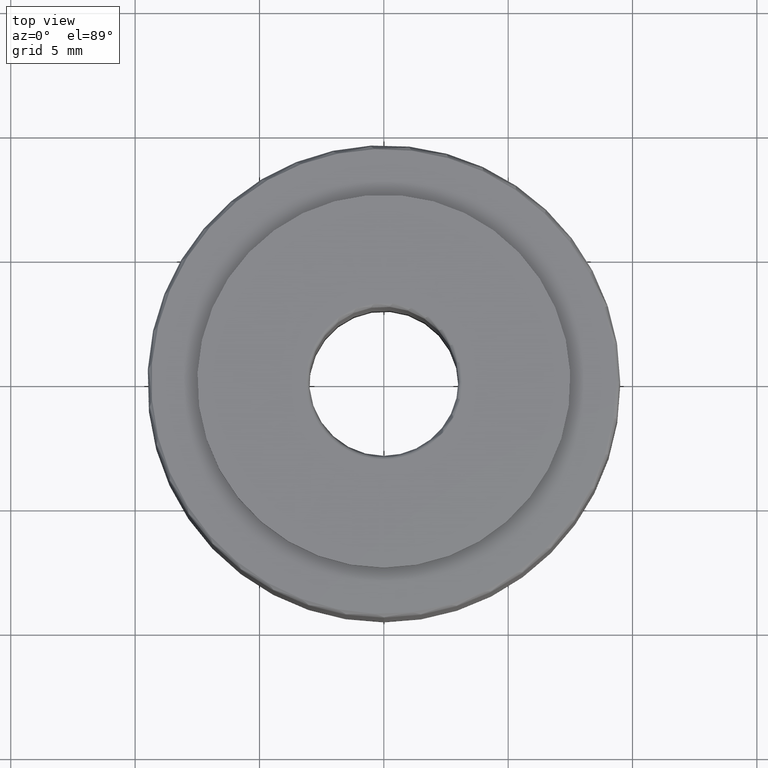
[diagram: clean part render]
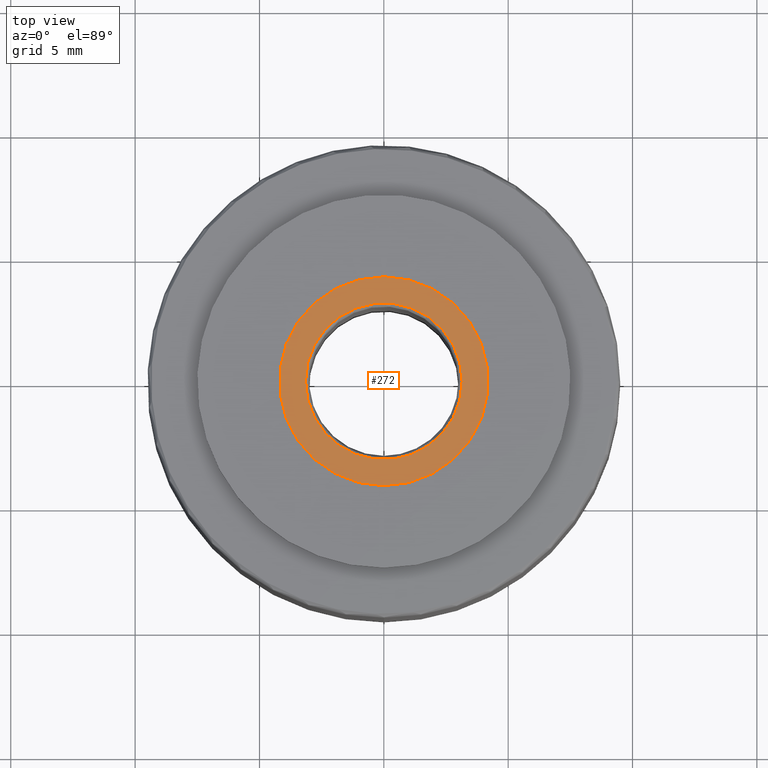
[diagram: same view with one face highlighted and labeled with its STEP entity id]
A machine part, top view. The second image highlights one B-rep face of the part: STEP entity #272.
In plain terms, the highlighted planar face has unit normal (0, -0, 1).
Its self-contained STEP definition (entity closure, byte-faithful):
#43=FACE_BOUND('',#81,.T.);
#51=PLANE('',#319);
#60=FACE_OUTER_BOUND('',#80,.T.);
#80=EDGE_LOOP('',(#200));
#81=EDGE_LOOP('',(#201));
#107=CIRCLE('',#315,3.15);
#111=CIRCLE('',#320,4.2);
#135=VERTEX_POINT('',#470);
#138=VERTEX_POINT('',#478);
#159=EDGE_CURVE('',#135,#135,#107,.T.);
#163=EDGE_CURVE('',#138,#138,#111,.T.);
#200=ORIENTED_EDGE('',*,*,#163,.F.);
#201=ORIENTED_EDGE('',*,*,#159,.T.);
#272=ADVANCED_FACE('',(#60,#43),#51,.T.);
#315=AXIS2_PLACEMENT_3D('',#471,#366,#367);
#319=AXIS2_PLACEMENT_3D('',#477,#374,#375);
#320=AXIS2_PLACEMENT_3D('',#479,#376,#377);
#366=DIRECTION('center_axis',(0.,3.06161699786839E-16,-1.));
#367=DIRECTION('ref_axis',(1.,0.,0.));
#374=DIRECTION('center_axis',(0.,-3.06161699786839E-16,1.));
#375=DIRECTION('ref_axis',(1.,0.,0.));
#376=DIRECTION('center_axis',(0.,3.06161699786839E-16,-1.));
#377=DIRECTION('ref_axis',(1.,0.,0.));
#470=CARTESIAN_POINT('',(3.15,-3.36581474878275E-15,6.));
#471=CARTESIAN_POINT('Origin',(0.,-2.98005100705133E-15,6.));
#477=CARTESIAN_POINT('Origin',(0.,4.2,6.));
#478=CARTESIAN_POINT('',(-5.14351655641888E-16,-4.2,6.));
#479=CARTESIAN_POINT('Origin',(0.,-2.98005100705133E-15,6.));